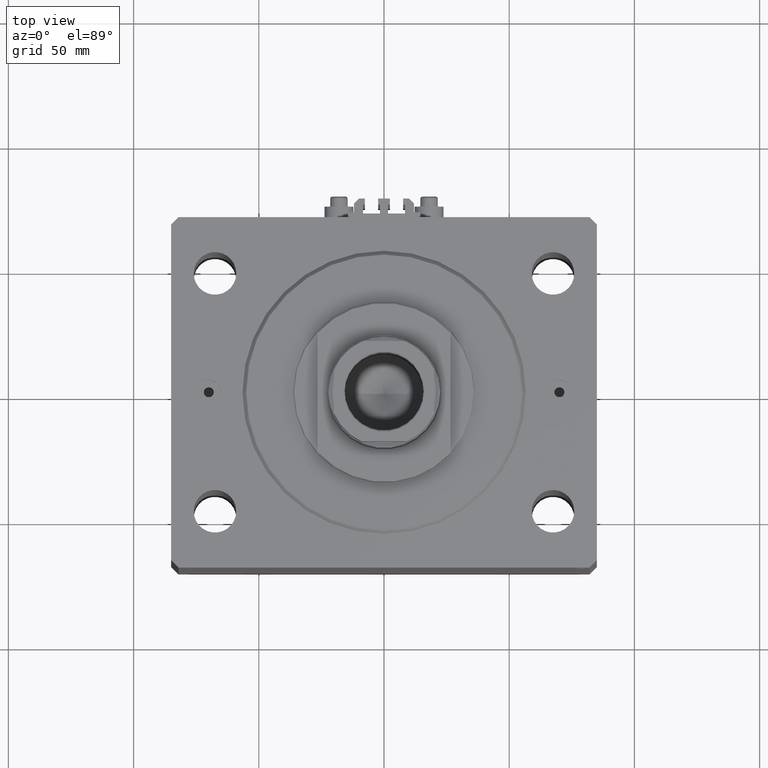
[diagram: clean part render]
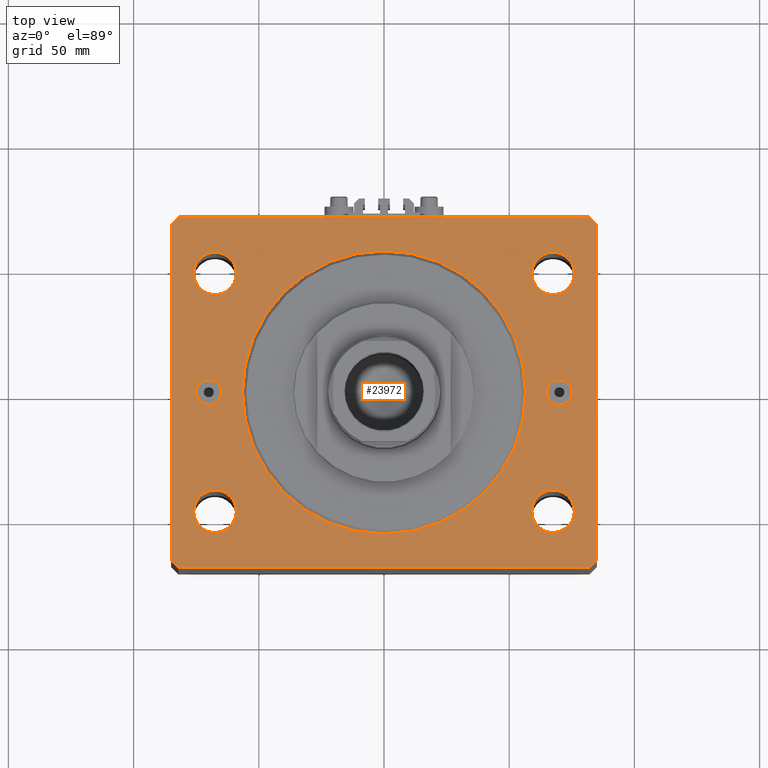
[diagram: same view with one face highlighted and labeled with its STEP entity id]
A machine part, top view. The second image highlights one B-rep face of the part: STEP entity #23972.
In plain terms, the highlighted planar face has unit normal (0, 0, 1).
Its self-contained STEP definition (entity closure, byte-faithful):
#359 = CARTESIAN_POINT ( 'NONE',  ( -56.50000000000000711, 6.919254415182546126E-15, 0.000000000000000000 ) ) ;
#698 = CIRCLE ( 'NONE', #28137, 5.000000000000004441 ) ;
#1072 = CARTESIAN_POINT ( 'NONE',  ( 56.50000000000000711, 0.000000000000000000, 0.000000000000000000 ) ) ;
#1159 = VERTEX_POINT ( 'NONE', #21282 ) ;
#1539 = EDGE_CURVE ( 'NONE', #16379, #3203, #24640, .T. ) ;
#1608 = VERTEX_POINT ( 'NONE', #35203 ) ;
#1629 = LINE ( 'NONE', #38154, #32535 ) ;
#2009 = CARTESIAN_POINT ( 'NONE',  ( -82.00000000000000000, 70.00000000000000000, 0.000000000000000000 ) ) ;
#2085 = EDGE_CURVE ( 'NONE', #37428, #42713, #27083, .T. ) ;
#2189 = ORIENTED_EDGE ( 'NONE', *, *, #15558, .T. ) ;
#2397 = DIRECTION ( 'NONE',  ( 0.000000000000000000, 0.000000000000000000, 1.000000000000000000 ) ) ;
#2869 = VERTEX_POINT ( 'NONE', #32595 ) ;
#3203 = VERTEX_POINT ( 'NONE', #3896 ) ;
#3896 = CARTESIAN_POINT ( 'NONE',  ( -75.99999999999998579, -47.50000000000001421, 0.000000000000000000 ) ) ;
#3996 = EDGE_CURVE ( 'NONE', #42063, #21864, #45868, .T. ) ;
#4164 = EDGE_CURVE ( 'NONE', #3203, #16379, #46799, .T. ) ;
#4197 = FACE_BOUND ( 'NONE', #22962, .T. ) ;
#4578 = AXIS2_PLACEMENT_3D ( 'NONE', #31019, #16940, #38650 ) ;
#4662 = FACE_BOUND ( 'NONE', #41879, .T. ) ;
#4704 = DIRECTION ( 'NONE',  ( 1.000000000000000000, 0.000000000000000000, 0.000000000000000000 ) ) ;
#4767 = ORIENTED_EDGE ( 'NONE', *, *, #28808, .T. ) ;
#4975 = EDGE_CURVE ( 'NONE', #38540, #2869, #8026, .T. ) ;
#4978 = LINE ( 'NONE', #9278, #39754 ) ;
#5071 = CARTESIAN_POINT ( 'NONE',  ( 75.00000000000001421, 0.000000000000000000, 0.000000000000000000 ) ) ;
#5189 = EDGE_CURVE ( 'NONE', #31254, #12127, #26330, .T. ) ;
#5632 = AXIS2_PLACEMENT_3D ( 'NONE', #17467, #32485, #10770 ) ;
#6124 = CARTESIAN_POINT ( 'NONE',  ( -67.50000000000000000, 47.50000000000000000, 0.000000000000000000 ) ) ;
#6148 = DIRECTION ( 'NONE',  ( 0.000000000000000000, 0.000000000000000000, 1.000000000000000000 ) ) ;
#6310 = VECTOR ( 'NONE', #20402, 1000.000000000000000 ) ;
#6316 = DIRECTION ( 'NONE',  ( 1.000000000000000000, 0.000000000000000000, 0.000000000000000000 ) ) ;
#6557 = ORIENTED_EDGE ( 'NONE', *, *, #31670, .F. ) ;
#6880 = AXIS2_PLACEMENT_3D ( 'NONE', #27651, #6148, #42205 ) ;
#6956 = ORIENTED_EDGE ( 'NONE', *, *, #40797, .T. ) ;
#7073 = CARTESIAN_POINT ( 'NONE',  ( -82.00000000000000000, -70.00000000000000000, 0.000000000000000000 ) ) ;
#7662 = EDGE_LOOP ( 'NONE', ( #34619, #2189 ) ) ;
#7769 = FACE_OUTER_BOUND ( 'NONE', #35869, .T. ) ;
#8026 = CIRCLE ( 'NONE', #17210, 5.000000000000004441 ) ;
#8229 = DIRECTION ( 'NONE',  ( 1.000000000000000000, 0.000000000000000000, -0.000000000000000000 ) ) ;
#8339 = EDGE_CURVE ( 'NONE', #18667, #42827, #1629, .T. ) ;
#8466 = DIRECTION ( 'NONE',  ( 0.000000000000000000, 0.000000000000000000, 1.000000000000000000 ) ) ;
#8703 = CARTESIAN_POINT ( 'NONE',  ( -67.50000000000000000, 47.50000000000000000, 0.000000000000000000 ) ) ;
#8720 = CIRCLE ( 'NONE', #27033, 8.499999999999992895 ) ;
#8820 = CARTESIAN_POINT ( 'NONE',  ( 70.00000000000000000, 0.000000000000000000, 0.000000000000000000 ) ) ;
#9177 = DIRECTION ( 'NONE',  ( 0.000000000000000000, 0.000000000000000000, 1.000000000000000000 ) ) ;
#9224 = AXIS2_PLACEMENT_3D ( 'NONE', #29587, #25542, #29823 ) ;
#9278 = CARTESIAN_POINT ( 'NONE',  ( 82.00000000000056843, 70.00000000000000000, 0.000000000000000000 ) ) ;
#10580 = VERTEX_POINT ( 'NONE', #44553 ) ;
#10693 = DIRECTION ( 'NONE',  ( 0.000000000000000000, 0.000000000000000000, 1.000000000000000000 ) ) ;
#10700 = CIRCLE ( 'NONE', #38872, 56.50000000000000711 ) ;
#10704 = CIRCLE ( 'NONE', #6880, 8.499999999999992895 ) ;
#10770 = DIRECTION ( 'NONE',  ( 1.000000000000000000, 0.000000000000000000, 0.000000000000000000 ) ) ;
#11278 = ORIENTED_EDGE ( 'NONE', *, *, #34345, .F. ) ;
#11461 = CARTESIAN_POINT ( 'NONE',  ( 76.00000000000001421, 47.49999999999999289, 0.000000000000000000 ) ) ;
#11596 = FACE_BOUND ( 'NONE', #35149, .T. ) ;
#11824 = CARTESIAN_POINT ( 'NONE',  ( 0.000000000000000000, 0.000000000000000000, 0.000000000000000000 ) ) ;
#11853 = VERTEX_POINT ( 'NONE', #359 ) ;
#11864 = VECTOR ( 'NONE', #15762, 1000.000000000000114 ) ;
#12127 = VERTEX_POINT ( 'NONE', #40401 ) ;
#12131 = DIRECTION ( 'NONE',  ( -0.7071067811865507924, -0.7071067811865441310, 0.000000000000000000 ) ) ;
#12411 = DIRECTION ( 'NONE',  ( 1.000000000000000000, 0.000000000000000000, 0.000000000000000000 ) ) ;
#12699 = DIRECTION ( 'NONE',  ( -0.7071067811865361374, 0.7071067811865588970, 0.000000000000000000 ) ) ;
#12864 = DIRECTION ( 'NONE',  ( 1.035655806553317576E-16, -1.000000000000000000, 0.000000000000000000 ) ) ;
#12872 = DIRECTION ( 'NONE',  ( 0.000000000000000000, 0.000000000000000000, 1.000000000000000000 ) ) ;
#13614 = ORIENTED_EDGE ( 'NONE', *, *, #5189, .F. ) ;
#13652 = CIRCLE ( 'NONE', #19776, 8.499999999999992895 ) ;
#14223 = EDGE_CURVE ( 'NONE', #2869, #38540, #698, .T. ) ;
#14500 = CIRCLE ( 'NONE', #4578, 5.000000000000004441 ) ;
#15558 = EDGE_CURVE ( 'NONE', #1159, #32751, #18261, .T. ) ;
#15663 = CARTESIAN_POINT ( 'NONE',  ( -85.00000000000000000, -67.00000000000000000, 0.000000000000000000 ) ) ;
#15762 = DIRECTION ( 'NONE',  ( 0.7071067811865474617, -0.7071067811865474617, 0.000000000000000000 ) ) ;
#16340 = CARTESIAN_POINT ( 'NONE',  ( -82.00000000000000000, -70.00000000000000000, 0.000000000000000000 ) ) ;
#16379 = VERTEX_POINT ( 'NONE', #39193 ) ;
#16510 = EDGE_LOOP ( 'NONE', ( #46068, #36820 ) ) ;
#16797 = CIRCLE ( 'NONE', #28252, 56.50000000000000711 ) ;
#16940 = DIRECTION ( 'NONE',  ( 0.000000000000000000, -0.000000000000000000, -1.000000000000000000 ) ) ;
#17210 = AXIS2_PLACEMENT_3D ( 'NONE', #40282, #30244, #4704 ) ;
#17307 = CARTESIAN_POINT ( 'NONE',  ( 67.50000000000000000, 47.49999999999999289, 0.000000000000000000 ) ) ;
#17389 = DIRECTION ( 'NONE',  ( 1.000000000000000000, 0.000000000000000000, 0.000000000000000000 ) ) ;
#17406 = LINE ( 'NONE', #31965, #23653 ) ;
#17467 = CARTESIAN_POINT ( 'NONE',  ( -67.49999999999998579, -47.50000000000001421, 0.000000000000000000 ) ) ;
#17598 = DIRECTION ( 'NONE',  ( 1.000000000000000000, 0.000000000000000000, 0.000000000000000000 ) ) ;
#18261 = CIRCLE ( 'NONE', #39615, 5.000000000000004441 ) ;
#18667 = VERTEX_POINT ( 'NONE', #2009 ) ;
#19007 = FACE_BOUND ( 'NONE', #42044, .T. ) ;
#19230 = EDGE_CURVE ( 'NONE', #42827, #33701, #30783, .T. ) ;
#19314 = CIRCLE ( 'NONE', #45191, 8.500000000000007105 ) ;
#19323 = DIRECTION ( 'NONE',  ( 0.000000000000000000, 0.000000000000000000, 1.000000000000000000 ) ) ;
#19561 = DIRECTION ( 'NONE',  ( 1.000000000000000000, 0.000000000000000000, 0.000000000000000000 ) ) ;
#19776 = AXIS2_PLACEMENT_3D ( 'NONE', #8703, #8466, #19954 ) ;
#19924 = EDGE_CURVE ( 'NONE', #32751, #1159, #14500, .T. ) ;
#19949 = EDGE_CURVE ( 'NONE', #11853, #37581, #16797, .T. ) ;
#19954 = DIRECTION ( 'NONE',  ( 1.000000000000000000, 0.000000000000000000, 0.000000000000000000 ) ) ;
#20176 = ORIENTED_EDGE ( 'NONE', *, *, #3996, .T. ) ;
#20301 = CARTESIAN_POINT ( 'NONE',  ( 82.00000000000001421, -70.00000000000000000, 0.000000000000000000 ) ) ;
#20318 = ORIENTED_EDGE ( 'NONE', *, *, #45811, .F. ) ;
#20370 = EDGE_CURVE ( 'NONE', #10580, #1608, #8720, .T. ) ;
#20402 = DIRECTION ( 'NONE',  ( 1.000000000000000000, 0.000000000000000000, 0.000000000000000000 ) ) ;
#20611 = EDGE_CURVE ( 'NONE', #33701, #37428, #33894, .T. ) ;
#20782 = ORIENTED_EDGE ( 'NONE', *, *, #1539, .F. ) ;
#21282 = CARTESIAN_POINT ( 'NONE',  ( 65.00000000000000000, 6.123233995736770227E-16, 0.000000000000000000 ) ) ;
#21751 = CARTESIAN_POINT ( 'NONE',  ( 85.00000000000052580, 66.99999999999995737, 0.000000000000000000 ) ) ;
#21864 = VERTEX_POINT ( 'NONE', #24564 ) ;
#22371 = FACE_BOUND ( 'NONE', #16510, .T. ) ;
#22428 = CARTESIAN_POINT ( 'NONE',  ( -85.00000000000001421, 67.00000000000001421, 0.000000000000000000 ) ) ;
#22733 = ORIENTED_EDGE ( 'NONE', *, *, #19949, .F. ) ;
#22962 = EDGE_LOOP ( 'NONE', ( #11278, #22733 ) ) ;
#23396 = DIRECTION ( 'NONE',  ( -1.000000000000000000, 0.000000000000000000, 0.000000000000000000 ) ) ;
#23653 = VECTOR ( 'NONE', #40384, 1000.000000000000000 ) ;
#23972 = ADVANCED_FACE ( 'NONE', ( #7769, #4662, #19007, #22371, #29975, #4197, #11596, #26160 ), #44524, .T. ) ;
#23994 = CARTESIAN_POINT ( 'NONE',  ( 82.00000000000001421, -70.00000000000000000, 0.000000000000000000 ) ) ;
#24564 = CARTESIAN_POINT ( 'NONE',  ( 82.00000000000056843, 70.00000000000000000, 0.000000000000000000 ) ) ;
#24640 = CIRCLE ( 'NONE', #30718, 8.499999999999992895 ) ;
#24712 = VECTOR ( 'NONE', #12699, 1000.000000000000114 ) ;
#24728 = DIRECTION ( 'NONE',  ( 0.000000000000000000, 0.000000000000000000, 1.000000000000000000 ) ) ;
#24846 = DIRECTION ( 'NONE',  ( 1.000000000000000000, 0.000000000000000000, 0.000000000000000000 ) ) ;
#25542 = DIRECTION ( 'NONE',  ( 0.000000000000000000, 0.000000000000000000, 1.000000000000000000 ) ) ;
#26160 = FACE_BOUND ( 'NONE', #7662, .T. ) ;
#26318 = ORIENTED_EDGE ( 'NONE', *, *, #26484, .T. ) ;
#26330 = CIRCLE ( 'NONE', #34711, 8.500000000000007105 ) ;
#26484 = EDGE_CURVE ( 'NONE', #42713, #40526, #35652, .T. ) ;
#26496 = DIRECTION ( 'NONE',  ( 0.000000000000000000, -0.000000000000000000, -1.000000000000000000 ) ) ;
#27033 = AXIS2_PLACEMENT_3D ( 'NONE', #6124, #46468, #17598 ) ;
#27083 = LINE ( 'NONE', #16340, #6310 ) ;
#27184 = CARTESIAN_POINT ( 'NONE',  ( 0.000000000000000000, 0.000000000000000000, 0.000000000000000000 ) ) ;
#27651 = CARTESIAN_POINT ( 'NONE',  ( 67.49999999999998579, -47.50000000000001421, 0.000000000000000000 ) ) ;
#28137 = AXIS2_PLACEMENT_3D ( 'NONE', #28419, #2397, #24846 ) ;
#28252 = AXIS2_PLACEMENT_3D ( 'NONE', #42464, #12872, #34111 ) ;
#28419 = CARTESIAN_POINT ( 'NONE',  ( -70.00000000000000000, 0.000000000000000000, 0.000000000000000000 ) ) ;
#28808 = EDGE_CURVE ( 'NONE', #40526, #42063, #17406, .T. ) ;
#29587 = CARTESIAN_POINT ( 'NONE',  ( 67.49999999999998579, -47.50000000000001421, 0.000000000000000000 ) ) ;
#29823 = DIRECTION ( 'NONE',  ( 1.000000000000000000, 0.000000000000000000, 0.000000000000000000 ) ) ;
#29975 = FACE_BOUND ( 'NONE', #38062, .T. ) ;
#30087 = ORIENTED_EDGE ( 'NONE', *, *, #14223, .F. ) ;
#30244 = DIRECTION ( 'NONE',  ( 0.000000000000000000, 0.000000000000000000, 1.000000000000000000 ) ) ;
#30651 = CARTESIAN_POINT ( 'NONE',  ( 85.00000000000001421, -67.00000000000000000, 0.000000000000000000 ) ) ;
#30718 = AXIS2_PLACEMENT_3D ( 'NONE', #43384, #10693, #17389 ) ;
#30783 = LINE ( 'NONE', #34588, #32021 ) ;
#31019 = CARTESIAN_POINT ( 'NONE',  ( 70.00000000000000000, 0.000000000000000000, 0.000000000000000000 ) ) ;
#31254 = VERTEX_POINT ( 'NONE', #11461 ) ;
#31670 = EDGE_CURVE ( 'NONE', #1608, #10580, #13652, .T. ) ;
#31965 = CARTESIAN_POINT ( 'NONE',  ( 85.00000000000001421, -67.00000000000000000, 0.000000000000000000 ) ) ;
#32021 = VECTOR ( 'NONE', #12864, 1000.000000000000000 ) ;
#32485 = DIRECTION ( 'NONE',  ( 0.000000000000000000, 0.000000000000000000, 1.000000000000000000 ) ) ;
#32535 = VECTOR ( 'NONE', #12131, 1000.000000000000114 ) ;
#32595 = CARTESIAN_POINT ( 'NONE',  ( -75.00000000000001421, 6.123233995736770227E-16, 0.000000000000000000 ) ) ;
#32705 = ORIENTED_EDGE ( 'NONE', *, *, #4975, .F. ) ;
#32751 = VERTEX_POINT ( 'NONE', #5071 ) ;
#33594 = EDGE_CURVE ( 'NONE', #45763, #38503, #10704, .T. ) ;
#33701 = VERTEX_POINT ( 'NONE', #15663 ) ;
#33894 = LINE ( 'NONE', #34129, #11864 ) ;
#34111 = DIRECTION ( 'NONE',  ( 1.000000000000000000, 0.000000000000000000, 0.000000000000000000 ) ) ;
#34129 = CARTESIAN_POINT ( 'NONE',  ( -85.00000000000000000, -67.00000000000000000, 0.000000000000000000 ) ) ;
#34345 = EDGE_CURVE ( 'NONE', #37581, #11853, #10700, .T. ) ;
#34477 = DIRECTION ( 'NONE',  ( 1.000000000000000000, 0.000000000000000000, 0.000000000000000000 ) ) ;
#34588 = CARTESIAN_POINT ( 'NONE',  ( -85.00000000000001421, 67.00000000000001421, 0.000000000000000000 ) ) ;
#34619 = ORIENTED_EDGE ( 'NONE', *, *, #19924, .T. ) ;
#34711 = AXIS2_PLACEMENT_3D ( 'NONE', #38304, #9177, #34477 ) ;
#34885 = ORIENTED_EDGE ( 'NONE', *, *, #20611, .T. ) ;
#35149 = EDGE_LOOP ( 'NONE', ( #32705, #30087 ) ) ;
#35203 = CARTESIAN_POINT ( 'NONE',  ( -59.00000000000001421, 47.50000000000000000, 0.000000000000000000 ) ) ;
#35652 = LINE ( 'NONE', #23994, #42589 ) ;
#35869 = EDGE_LOOP ( 'NONE', ( #6956, #36752, #39521, #34885, #39903, #26318, #4767, #20176 ) ) ;
#36454 = ORIENTED_EDGE ( 'NONE', *, *, #4164, .F. ) ;
#36657 = CIRCLE ( 'NONE', #9224, 8.499999999999992895 ) ;
#36752 = ORIENTED_EDGE ( 'NONE', *, *, #8339, .T. ) ;
#36820 = ORIENTED_EDGE ( 'NONE', *, *, #39758, .F. ) ;
#37428 = VERTEX_POINT ( 'NONE', #7073 ) ;
#37581 = VERTEX_POINT ( 'NONE', #1072 ) ;
#38062 = EDGE_LOOP ( 'NONE', ( #20782, #36454 ) ) ;
#38154 = CARTESIAN_POINT ( 'NONE',  ( -82.00000000000000000, 70.00000000000000000, 0.000000000000000000 ) ) ;
#38304 = CARTESIAN_POINT ( 'NONE',  ( 67.50000000000000000, 47.49999999999999289, 0.000000000000000000 ) ) ;
#38503 = VERTEX_POINT ( 'NONE', #41251 ) ;
#38540 = VERTEX_POINT ( 'NONE', #44589 ) ;
#38650 = DIRECTION ( 'NONE',  ( 1.000000000000000000, 0.000000000000000000, 0.000000000000000000 ) ) ;
#38872 = AXIS2_PLACEMENT_3D ( 'NONE', #27184, #19323, #19561 ) ;
#39193 = CARTESIAN_POINT ( 'NONE',  ( -59.00000000000000000, -47.50000000000001421, 0.000000000000000000 ) ) ;
#39521 = ORIENTED_EDGE ( 'NONE', *, *, #19230, .T. ) ;
#39615 = AXIS2_PLACEMENT_3D ( 'NONE', #8820, #26496, #12411 ) ;
#39754 = VECTOR ( 'NONE', #23396, 1000.000000000000000 ) ;
#39758 = EDGE_CURVE ( 'NONE', #38503, #45763, #36657, .T. ) ;
#39903 = ORIENTED_EDGE ( 'NONE', *, *, #2085, .T. ) ;
#40282 = CARTESIAN_POINT ( 'NONE',  ( -70.00000000000000000, 0.000000000000000000, 0.000000000000000000 ) ) ;
#40384 = DIRECTION ( 'NONE',  ( 3.728360903591945148E-15, 1.000000000000000000, 0.000000000000000000 ) ) ;
#40401 = CARTESIAN_POINT ( 'NONE',  ( 59.00000000000000000, 47.49999999999999289, 0.000000000000000000 ) ) ;
#40526 = VERTEX_POINT ( 'NONE', #30651 ) ;
#40797 = EDGE_CURVE ( 'NONE', #21864, #18667, #4978, .T. ) ;
#40937 = DIRECTION ( 'NONE',  ( 0.000000000000000000, 0.000000000000000000, 1.000000000000000000 ) ) ;
#41251 = CARTESIAN_POINT ( 'NONE',  ( 59.00000000000000000, -47.50000000000001421, 0.000000000000000000 ) ) ;
#41879 = EDGE_LOOP ( 'NONE', ( #6557, #43360 ) ) ;
#42044 = EDGE_LOOP ( 'NONE', ( #13614, #20318 ) ) ;
#42063 = VERTEX_POINT ( 'NONE', #21751 ) ;
#42205 = DIRECTION ( 'NONE',  ( 1.000000000000000000, 0.000000000000000000, 0.000000000000000000 ) ) ;
#42335 = DIRECTION ( 'NONE',  ( 0.7071067811865474617, 0.7071067811865474617, 0.000000000000000000 ) ) ;
#42464 = CARTESIAN_POINT ( 'NONE',  ( 0.000000000000000000, 0.000000000000000000, 0.000000000000000000 ) ) ;
#42589 = VECTOR ( 'NONE', #42335, 1000.000000000000114 ) ;
#42713 = VERTEX_POINT ( 'NONE', #20301 ) ;
#42827 = VERTEX_POINT ( 'NONE', #22428 ) ;
#43360 = ORIENTED_EDGE ( 'NONE', *, *, #20370, .F. ) ;
#43384 = CARTESIAN_POINT ( 'NONE',  ( -67.49999999999998579, -47.50000000000001421, 0.000000000000000000 ) ) ;
#44524 = PLANE ( 'NONE',  #45579 ) ;
#44553 = CARTESIAN_POINT ( 'NONE',  ( -76.00000000000000000, 47.50000000000000000, 0.000000000000000000 ) ) ;
#44589 = CARTESIAN_POINT ( 'NONE',  ( -65.00000000000000000, 0.000000000000000000, 0.000000000000000000 ) ) ;
#45191 = AXIS2_PLACEMENT_3D ( 'NONE', #17307, #24728, #6316 ) ;
#45465 = CARTESIAN_POINT ( 'NONE',  ( 75.99999999999998579, -47.50000000000001421, 0.000000000000000000 ) ) ;
#45579 = AXIS2_PLACEMENT_3D ( 'NONE', #11824, #40937, #8229 ) ;
#45763 = VERTEX_POINT ( 'NONE', #45465 ) ;
#45811 = EDGE_CURVE ( 'NONE', #12127, #31254, #19314, .T. ) ;
#45868 = LINE ( 'NONE', #46105, #24712 ) ;
#46068 = ORIENTED_EDGE ( 'NONE', *, *, #33594, .F. ) ;
#46105 = CARTESIAN_POINT ( 'NONE',  ( 85.00000000000052580, 66.99999999999995737, 0.000000000000000000 ) ) ;
#46468 = DIRECTION ( 'NONE',  ( 0.000000000000000000, 0.000000000000000000, 1.000000000000000000 ) ) ;
#46799 = CIRCLE ( 'NONE', #5632, 8.499999999999992895 ) ;